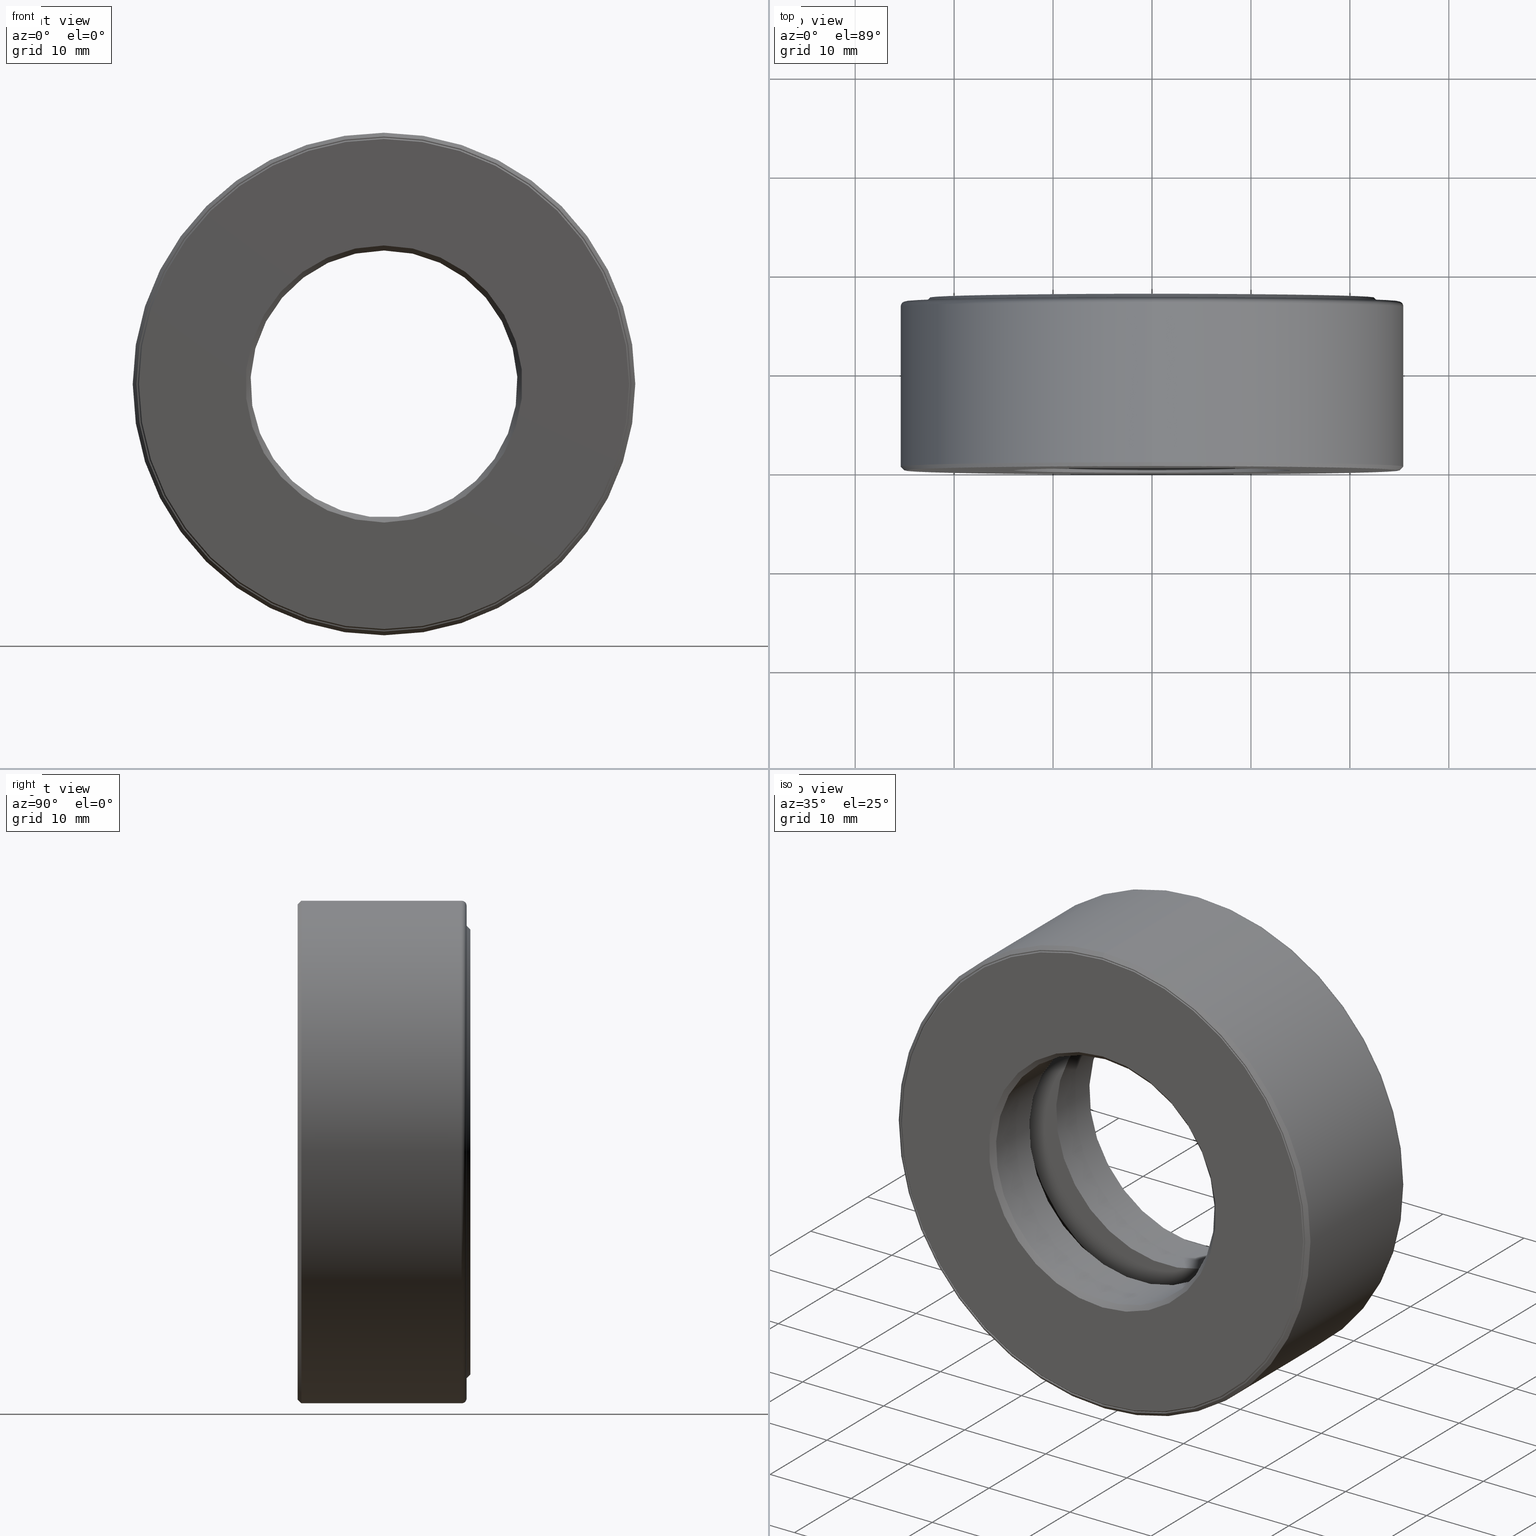
[diagram: canonical four-view strip — front | top / right | iso, engineering-drawing reading convention]
A machine part, canonical four-view strip (front | top / right | iso — engineering-drawing reading convention). The complete STEP part file that produces these views, byte-faithful:
ISO-10303-21;
HEADER;
FILE_DESCRIPTION (( 'STEP AP203' ),
    '1' );
FILE_NAME ('T-100-9.step',
    '2016-06-29T18:27:15',
    ( '' ),
    ( '' ),
    'SwSTEP 2.0',
    'SolidWorks 2016',
    '' );
FILE_SCHEMA (( 'CONFIG_CONTROL_DESIGN' ));
ENDSEC;

DATA;
#1 = DIRECTION ( 'NONE',  ( -0.0000000000000000000, 1.000000000000000000, 0.0000000000000000000 ) ) ;
#2 = DIRECTION ( 'NONE',  ( 0.0000000000000000000, 0.0000000000000000000, 1.000000000000000000 ) ) ;
#3 = DIRECTION ( 'NONE',  ( 0.0000000000000000000, 0.0000000000000000000, 1.000000000000000000 ) ) ;
#4 = VERTEX_POINT ( 'NONE', #115 ) ;
#5 = ADVANCED_FACE ( 'NONE', ( ), #351, .T. ) ;
#6 = ADVANCED_FACE ( 'NONE', ( #377, #548 ), #121, .T. ) ;
#7 = ORIENTED_EDGE ( 'NONE', *, *, #434, .F. ) ;
#8 = EDGE_LOOP ( 'NONE', ( #350 ) ) ;
#9 = AXIS2_PLACEMENT_3D ( 'NONE', #144, #508, #2 ) ;
#10 = CARTESIAN_POINT ( 'NONE',  ( 2.120999995080945500E-016, 0.2499999999999999200, 0.0000000000000000000 ) ) ;
#11 = ADVANCED_FACE ( 'NONE', ( #205, #400 ), #259, .F. ) ;
#12 = APPROVAL_DATE_TIME ( #135, #199 ) ;
#13 = VERTEX_POINT ( 'NONE', #533 ) ;
#14 = FACE_OUTER_BOUND ( 'NONE', #578, .T. ) ;
#15 = ORIENTED_EDGE ( 'NONE', *, *, #577, .F. ) ;
#16 = EDGE_LOOP ( 'NONE', ( #399 ) ) ;
#17 = DIRECTION ( 'NONE',  ( 0.0000000000000000000, -1.000000000000000000, 0.0000000000000000000 ) ) ;
#18 = PERSON_AND_ORGANIZATION ( #168, #388 ) ;
#19 = AXIS2_PLACEMENT_3D ( 'NONE', #266, #307, #397 ) ;
#20 = VERTEX_POINT ( 'NONE', #313 ) ;
#21 = CONICAL_SURFACE ( 'NONE', #165, 0.5312500000000000000, 0.7853981633974526100 ) ;
#22 = ORIENTED_EDGE ( 'NONE', *, *, #559, .F. ) ;
#23 = ORIENTED_EDGE ( 'NONE', *, *, #265, .T. ) ;
#24 = AXIS2_PLACEMENT_3D ( 'NONE', #605, #420, #417 ) ;
#25 = CC_DESIGN_APPROVAL ( #116, ( #63 ) ) ;
#26 = CLOSED_SHELL ( 'NONE', ( #5 ) ) ;
#27 = TOROIDAL_SURFACE ( 'NONE', #192, 0.8147499999999998600, 0.1562500000000000000 ) ;
#28 =( NAMED_UNIT ( * ) PLANE_ANGLE_UNIT ( ) SI_UNIT ( $, .RADIAN. ) );
#29 = EDGE_CURVE ( 'NONE', #127, #127, #250, .T. ) ;
#30 = ADVANCED_FACE ( 'NONE', ( ), #463, .T. ) ;
#31 = VERTEX_POINT ( 'NONE', #527 ) ;
#32 = CC_DESIGN_APPROVAL ( #199, ( #492 ) ) ;
#33 = EDGE_LOOP ( 'NONE', ( #211 ) ) ;
#34 = DIRECTION ( 'NONE',  ( 0.0000000000000000000, -1.000000000000000000, 0.0000000000000000000 ) ) ;
#35 = EDGE_LOOP ( 'NONE', ( #518 ) ) ;
#36 = DIRECTION ( 'NONE',  ( -0.0000000000000000000, 1.000000000000000000, -0.0000000000000000000 ) ) ;
#37 = DIRECTION ( 'NONE',  ( 0.0000000000000000000, 0.0000000000000000000, 1.000000000000000000 ) ) ;
#38 = DATE_TIME_ROLE ( 'creation_date' ) ;
#39 = VERTEX_POINT ( 'NONE', #271 ) ;
#40 = DIRECTION ( 'NONE',  ( 0.0000000000000000000, 0.0000000000000000000, 1.000000000000000000 ) ) ;
#41 = ORIENTED_EDGE ( 'NONE', *, *, #442, .F. ) ;
#42 = CARTESIAN_POINT ( 'NONE',  ( 0.0000000000000000000, 0.5995000000000001400, 0.0000000000000000000 ) ) ;
#43 = ORIENTED_EDGE ( 'NONE', *, *, #348, .F. ) ;
#44 = DIRECTION ( 'NONE',  ( -0.0000000000000000000, 1.000000000000000000, -0.0000000000000000000 ) ) ;
#45 = ADVANCED_FACE ( 'NONE', ( #472, #385 ), #370, .F. ) ;
#46 = CARTESIAN_POINT ( 'NONE',  ( 0.0000000000000000000, 0.01499999999999997700, 0.0000000000000000000 ) ) ;
#47 = DIRECTION ( 'NONE',  ( 0.0000000000000000000, 0.0000000000000000000, 1.000000000000000000 ) ) ;
#48 = MANIFOLD_SOLID_BREP ( 'Revolve3', #26 ) ;
#49 = AXIS2_PLACEMENT_3D ( 'NONE', #151, #251, #64 ) ;
#50 = DIRECTION ( 'NONE',  ( 0.0000000000000000000, 0.0000000000000000000, 1.000000000000000000 ) ) ;
#51 = LOCAL_TIME ( 14, 27, 15.00000000000000000, #162 ) ;
#52 = ADVANCED_FACE ( 'NONE', ( #427, #532 ), #27, .F. ) ;
#53 = DIRECTION ( 'NONE',  ( -0.0000000000000000000, 1.000000000000000000, -0.0000000000000000000 ) ) ;
#54 = DIRECTION ( 'NONE',  ( 0.0000000000000000000, 0.0000000000000000000, 1.000000000000000000 ) ) ;
#55 = FACE_OUTER_BOUND ( 'NONE', #422, .T. ) ;
#56 = CARTESIAN_POINT ( 'NONE',  ( 0.0000000000000000000, 0.4375000000000000000, 0.0000000000000000000 ) ) ;
#57 = ORIENTED_EDGE ( 'NONE', *, *, #29, .T. ) ;
#58 = EDGE_CURVE ( 'NONE', #496, #496, #281, .T. ) ;
#59 = CARTESIAN_POINT ( 'NONE',  ( 0.0000000000000000000, 0.4375000000000000000, 0.0000000000000000000 ) ) ;
#60 = EDGE_LOOP ( 'NONE', ( #540 ) ) ;
#61 = ADVANCED_FACE ( 'NONE', ( #232, #103 ), #159, .T. ) ;
#62 = ORIENTED_EDGE ( 'NONE', *, *, #58, .F. ) ;
#63 = SECURITY_CLASSIFICATION ( '', '', #283 ) ;
#64 = DIRECTION ( 'NONE',  ( 0.0000000000000000000, 0.0000000000000000000, 1.000000000000000000 ) ) ;
#65 = EDGE_CURVE ( 'NONE', #512, #512, #264, .T. ) ;
#66 = COORDINATED_UNIVERSAL_TIME_OFFSET ( 5, 0, .BEHIND. ) ;
#67 = CIRCLE ( 'NONE', #480, 0.6897499999999997500 ) ;
#68 = CLOSED_SHELL ( 'NONE', ( #378 ) ) ;
#69 = CC_DESIGN_APPROVAL ( #402, ( #126 ) ) ;
#70 = CIRCLE ( 'NONE', #109, 0.9799999999999997600 ) ;
#71 = ORIENTED_EDGE ( 'NONE', *, *, #146, .F. ) ;
#72 = CYLINDRICAL_SURFACE ( 'NONE', #589, 0.9200000000000000400 ) ;
#73 = DIRECTION ( 'NONE',  ( 0.0000000000000000000, 0.0000000000000000000, -1.000000000000000000 ) ) ;
#74 = COORDINATED_UNIVERSAL_TIME_OFFSET ( 5, 0, .BEHIND. ) ;
#75 = CARTESIAN_POINT ( 'NONE',  ( 0.0000000000000000000, 0.6724999999999998800, 0.9200000000000000400 ) ) ;
#76 = FACE_OUTER_BOUND ( 'NONE', #249, .T. ) ;
#77 = CARTESIAN_POINT ( 'NONE',  ( 0.0000000000000000000, 0.6524999999999997500, 0.9799999999999999800 ) ) ;
#78 = ORIENTED_EDGE ( 'NONE', *, *, #348, .T. ) ;
#79 = DIRECTION ( 'NONE',  ( 0.0000000000000000000, -1.000000000000000000, 0.0000000000000000000 ) ) ;
#80 = AXIS2_PLACEMENT_3D ( 'NONE', #321, #499, #360 ) ;
#81 = DIRECTION ( 'NONE',  ( -0.0000000000000000000, 1.000000000000000000, -0.0000000000000000000 ) ) ;
#82 = ADVANCED_FACE ( 'NONE', ( #368, #479 ), #539, .F. ) ;
#83 = DIRECTION ( 'NONE',  ( 0.0000000000000000000, 0.0000000000000000000, -1.000000000000000000 ) ) ;
#84 = CIRCLE ( 'NONE', #295, 0.9849999999999999900 ) ;
#85 = ORIENTED_EDGE ( 'NONE', *, *, #324, .F. ) ;
#86 = FACE_BOUND ( 'NONE', #305, .T. ) ;
#87 = DIRECTION ( 'NONE',  ( 0.0000000000000000000, -0.0000000000000000000, -1.000000000000000000 ) ) ;
#88 = AXIS2_PLACEMENT_3D ( 'NONE', #246, #553, #50 ) ;
#89 = DIRECTION ( 'NONE',  ( 0.0000000000000000000, 0.0000000000000000000, 1.000000000000000000 ) ) ;
#90 = DIRECTION ( 'NONE',  ( 0.0000000000000000000, 0.0000000000000000000, 1.000000000000000000 ) ) ;
#91 = APPROVAL_PERSON_ORGANIZATION ( #208, #116, #177 ) ;
#92 = CARTESIAN_POINT ( 'NONE',  ( 0.0000000000000000000, 0.2499999999999999200, 0.0000000000000000000 ) ) ;
#93 = FACE_BOUND ( 'NONE', #216, .T. ) ;
#94 = CLOSED_SHELL ( 'NONE', ( #52, #593, #332, #252, #124, #82, #134, #236, #61, #244, #196, #213, #185, #513, #11, #45 ) ) ;
#95 = DIRECTION ( 'NONE',  ( -0.0000000000000000000, 1.000000000000000000, -0.0000000000000000000 ) ) ;
#96 = DIRECTION ( 'NONE',  ( 0.0000000000000000000, 0.0000000000000000000, 1.000000000000000000 ) ) ;
#97 = DIRECTION ( 'NONE',  ( -0.0000000000000000000, 1.000000000000000000, -0.0000000000000000000 ) ) ;
#98 = PLANE ( 'NONE',  #157 ) ;
#99 = CYLINDRICAL_SURFACE ( 'NONE', #303, 0.9799999999999999800 ) ;
#100 = DIRECTION ( 'NONE',  ( -0.0000000000000000000, 1.000000000000000000, -0.0000000000000000000 ) ) ;
#101 = CLOSED_SHELL ( 'NONE', ( #30 ) ) ;
#102 = EDGE_CURVE ( 'NONE', #31, #31, #120, .T. ) ;
#103 = FACE_BOUND ( 'NONE', #471, .T. ) ;
#104 = CARTESIAN_POINT ( 'NONE',  ( 0.0000000000000000000, 0.4375000000000000000, 0.0000000000000000000 ) ) ;
#105 = DIRECTION ( 'NONE',  ( 0.0000000000000000000, 0.0000000000000000000, 1.000000000000000000 ) ) ;
#106 = APPROVAL_DATE_TIME ( #522, #402 ) ;
#107 = FACE_OUTER_BOUND ( 'NONE', #170, .T. ) ;
#108 = EDGE_LOOP ( 'NONE', ( #323 ) ) ;
#109 = AXIS2_PLACEMENT_3D ( 'NONE', #92, #53, #514 ) ;
#110 = AXIS2_PLACEMENT_3D ( 'NONE', #506, #465, #245 ) ;
#111 = TOROIDAL_SURFACE ( 'NONE', #429, 0.8147499999999998600, 0.1562500000000001100 ) ;
#112 = ORIENTED_EDGE ( 'NONE', *, *, #161, .T. ) ;
#113 = EDGE_LOOP ( 'NONE', ( #112 ) ) ;
#114 = CARTESIAN_POINT ( 'NONE',  ( 2.844684420822442200E-015, 0.3437499999999998300, 0.8147499999999998600 ) ) ;
#115 = CARTESIAN_POINT ( 'NONE',  ( 0.0000000000000000000, 0.01499999999999997700, 0.9999999999999998900 ) ) ;
#116 = APPROVAL ( #592, 'UNSPECIFIED' ) ;
#117 =( LENGTH_UNIT ( ) NAMED_UNIT ( * ) SI_UNIT ( $, .METRE. ) );
#118 = FACE_OUTER_BOUND ( 'NONE', #60, .T. ) ;
#119 = EDGE_LOOP ( 'NONE', ( #71 ) ) ;
#120 = CIRCLE ( 'NONE', #392, 0.9799999999999999800 ) ;
#121 = PLANE ( 'NONE',  #524 ) ;
#122 = CARTESIAN_POINT ( 'NONE',  ( 0.0000000000000000000, 0.005000000000000000100, 0.9799999999999999800 ) ) ;
#123 = ADVANCED_FACE ( 'NONE', ( ), #287, .T. ) ;
#124 = ADVANCED_FACE ( 'NONE', ( #579, #343 ), #72, .F. ) ;
#125 = CARTESIAN_POINT ( 'NONE',  ( 0.0000000000000000000, 0.3437499999999998300, 0.0000000000000000000 ) ) ;
#126 = PRODUCT_DEFINITION_FORMATION_WITH_SPECIFIED_SOURCE ( 'ANY', '', #404, .NOT_KNOWN. ) ;
#127 = VERTEX_POINT ( 'NONE', #438 ) ;
#128 = DIRECTION ( 'NONE',  ( -0.0000000000000000000, 1.000000000000000000, -0.0000000000000000000 ) ) ;
#129 = ORIENTED_EDGE ( 'NONE', *, *, #29, .F. ) ;
#130 = EDGE_LOOP ( 'NONE', ( #478 ) ) ;
#131 = CARTESIAN_POINT ( 'NONE',  ( 0.0000000000000000000, 0.01999999999999992400, 0.0000000000000000000 ) ) ;
#132 = AXIS2_PLACEMENT_3D ( 'NONE', #221, #73, #446 ) ;
#133 = DIRECTION ( 'NONE',  ( 0.0000000000000000000, -0.0000000000000000000, -1.000000000000000000 ) ) ;
#134 = ADVANCED_FACE ( 'NONE', ( #309, #325 ), #270, .T. ) ;
#135 = DATE_AND_TIME ( #543, #267 ) ;
#136 = DIRECTION ( 'NONE',  ( -0.0000000000000000000, 1.000000000000000000, -0.0000000000000000000 ) ) ;
#137 = VERTEX_POINT ( 'NONE', #487 ) ;
#138 = EDGE_LOOP ( 'NONE', ( #308 ) ) ;
#139 = EDGE_LOOP ( 'NONE', ( #41 ) ) ;
#140 = DIRECTION ( 'NONE',  ( 0.0000000000000000000, 0.0000000000000000000, 1.000000000000000000 ) ) ;
#141 = DIRECTION ( 'NONE',  ( -0.0000000000000000000, 1.000000000000000000, -0.0000000000000000000 ) ) ;
#142 = DIRECTION ( 'NONE',  ( -0.0000000000000000000, 1.000000000000000000, -0.0000000000000000000 ) ) ;
#143 = DIRECTION ( 'NONE',  ( 0.0000000000000000000, 0.0000000000000000000, 1.000000000000000000 ) ) ;
#144 = CARTESIAN_POINT ( 'NONE',  ( 0.0000000000000000000, 0.0000000000000000000, 0.0000000000000000000 ) ) ;
#145 = CIRCLE ( 'NONE', #49, 0.6897499999999997500 ) ;
#146 = EDGE_CURVE ( 'NONE', #382, #382, #505, .T. ) ;
#147 = CARTESIAN_POINT ( 'NONE',  ( 0.0000000000000000000, 0.3437499999999998300, 0.0000000000000000000 ) ) ;
#148 = ORIENTED_EDGE ( 'NONE', *, *, #260, .F. ) ;
#149 = FACE_OUTER_BOUND ( 'NONE', #139, .T. ) ;
#150 = CARTESIAN_POINT ( 'NONE',  ( 0.0000000000000000000, 0.0000000000000000000, 0.0000000000000000000 ) ) ;
#151 = CARTESIAN_POINT ( 'NONE',  ( 0.0000000000000000000, 0.2499999999999999700, 0.0000000000000000000 ) ) ;
#152 = DIRECTION ( 'NONE',  ( 0.0000000000000000000, 0.0000000000000000000, 1.000000000000000000 ) ) ;
#153 = LENGTH_MEASURE_WITH_UNIT ( LENGTH_MEASURE( 0.02539999999999999900 ), #117 );
#154 = VERTEX_POINT ( 'NONE', #122 ) ;
#155 = CARTESIAN_POINT ( 'NONE',  ( 0.0000000000000000000, 0.4374999999999998900, 0.0000000000000000000 ) ) ;
#156 = EDGE_LOOP ( 'NONE', ( #240 ) ) ;
#157 = AXIS2_PLACEMENT_3D ( 'NONE', #104, #17, #200 ) ;
#158 = ADVANCED_FACE ( 'NONE', ( #587, #86 ), #166, .T. ) ;
#159 = CONICAL_SURFACE ( 'NONE', #212, 0.9849999999999999900, 0.7853981633974415100 ) ;
#160 = CARTESIAN_POINT ( 'NONE',  ( 0.0000000000000000000, 0.01999999999999992400, 0.0000000000000000000 ) ) ;
#161 = EDGE_CURVE ( 'NONE', #194, #194, #184, .T. ) ;
#162 = COORDINATED_UNIVERSAL_TIME_OFFSET ( 5, 0, .BEHIND. ) ;
#163 = FACE_OUTER_BOUND ( 'NONE', #16, .T. ) ;
#164 = EDGE_LOOP ( 'NONE', ( #171 ) ) ;
#165 = AXIS2_PLACEMENT_3D ( 'NONE', #160, #474, #207 ) ;
#166 = CONICAL_SURFACE ( 'NONE', #298, 0.8849999999999996800, 0.7853981633974482800 ) ;
#167 = CARTESIAN_POINT ( 'NONE',  ( 0.0000000000000000000, 0.01999999999999992400, 0.5312500000000000000 ) ) ;
#168 = PERSON ( 'UNSPECIFIED', 'UNSPECIFIED', 'UNSPECIFIED', ('UNSPECIFIED'), ('UNSPECIFIED'), ('UNSPECIFIED') ) ;
#169 = AXIS2_PLACEMENT_3D ( 'NONE', #114, #319, #233 ) ;
#170 = EDGE_LOOP ( 'NONE', ( #183 ) ) ;
#171 = ORIENTED_EDGE ( 'NONE', *, *, #414, .F. ) ;
#172 = DIRECTION ( 'NONE',  ( 0.0000000000000000000, 0.0000000000000000000, 1.000000000000000000 ) ) ;
#173 = DATE_AND_TIME ( #570, #220 ) ;
#174 = CIRCLE ( 'NONE', #345, 0.9200000000000000400 ) ;
#175 = EDGE_LOOP ( 'NONE', ( #15 ) ) ;
#176 = CARTESIAN_POINT ( 'NONE',  ( 0.8147499999999998600, 0.3437499999999998300, -5.689368841644884400E-015 ) ) ;
#177 = APPROVAL_ROLE ( '' ) ;
#178 = EDGE_CURVE ( 'NONE', #572, #572, #606, .T. ) ;
#179 = CARTESIAN_POINT ( 'NONE',  ( 0.0000000000000000000, 0.2500000000000000000, 0.0000000000000000000 ) ) ;
#180 = DIRECTION ( 'NONE',  ( 0.0000000000000000000, 0.0000000000000000000, 1.000000000000000000 ) ) ;
#181 = PERSON_AND_ORGANIZATION_ROLE ( 'creator' ) ;
#182 = CARTESIAN_POINT ( 'NONE',  ( 0.0000000000000000000, 0.6875000000000000000, 0.0000000000000000000 ) ) ;
#183 = ORIENTED_EDGE ( 'NONE', *, *, #354, .F. ) ;
#184 = CIRCLE ( 'NONE', #202, 0.9799999999999997600 ) ;
#185 = ADVANCED_FACE ( 'NONE', ( #149, #347 ), #379, .F. ) ;
#186 = CARTESIAN_POINT ( 'NONE',  ( -5.386135634196113100E-017, 0.2500000000000000000, 0.0000000000000000000 ) ) ;
#187 = CC_DESIGN_PERSON_AND_ORGANIZATION_ASSIGNMENT ( #380, #181, ( #126 ) ) ;
#188 = DIRECTION ( 'NONE',  ( -0.0000000000000000000, 1.000000000000000000, -0.0000000000000000000 ) ) ;
#189 = DIRECTION ( 'NONE',  ( -0.0000000000000000000, 1.000000000000000000, -0.0000000000000000000 ) ) ;
#190 = DESIGN_CONTEXT ( 'detailed design', #529, 'design' ) ;
#191 = CARTESIAN_POINT ( 'NONE',  ( 0.0000000000000000000, 0.0000000000000000000, 0.0000000000000000000 ) ) ;
#192 = AXIS2_PLACEMENT_3D ( 'NONE', #125, #136, #229 ) ;
#193 = DIRECTION ( 'NONE',  ( -0.0000000000000000000, 1.000000000000000000, -0.0000000000000000000 ) ) ;
#194 = VERTEX_POINT ( 'NONE', #401 ) ;
#195 = DIRECTION ( 'NONE',  ( -0.0000000000000000000, 1.000000000000000000, -0.0000000000000000000 ) ) ;
#196 = ADVANCED_FACE ( 'NONE', ( #391, #293 ), #349, .F. ) ;
#197 = ORIENTED_EDGE ( 'NONE', *, *, #290, .F. ) ;
#198 = PLANE ( 'NONE',  #274 ) ;
#199 = APPROVAL ( #372, 'UNSPECIFIED' ) ;
#200 = DIRECTION ( 'NONE',  ( 0.0000000000000000000, -0.0000000000000000000, -1.000000000000000000 ) ) ;
#201 = FACE_OUTER_BOUND ( 'NONE', #175, .T. ) ;
#202 = AXIS2_PLACEMENT_3D ( 'NONE', #286, #189, #47 ) ;
#203 = DIRECTION ( 'NONE',  ( 0.0000000000000000000, -0.0000000000000000000, -1.000000000000000000 ) ) ;
#204 = EDGE_LOOP ( 'NONE', ( #302 ) ) ;
#205 = FACE_OUTER_BOUND ( 'NONE', #342, .T. ) ;
#206 = DIRECTION ( 'NONE',  ( 0.0000000000000000000, 0.0000000000000000000, 1.000000000000000000 ) ) ;
#207 = DIRECTION ( 'NONE',  ( 0.0000000000000000000, 0.0000000000000000000, -1.000000000000000000 ) ) ;
#208 = PERSON_AND_ORGANIZATION ( #168, #388 ) ;
#209 = CIRCLE ( 'NONE', #502, 0.9729999999999998600 ) ;
#210 = AXIS2_PLACEMENT_3D ( 'NONE', #243, #556, #54 ) ;
#211 = ORIENTED_EDGE ( 'NONE', *, *, #559, .T. ) ;
#212 = AXIS2_PLACEMENT_3D ( 'NONE', #598, #501, #40 ) ;
#213 = ADVANCED_FACE ( 'NONE', ( #222, #230 ), #322, .T. ) ;
#214 = CIRCLE ( 'NONE', #334, 0.5312500000000000000 ) ;
#215 = ORIENTED_EDGE ( 'NONE', *, *, #354, .T. ) ;
#216 = EDGE_LOOP ( 'NONE', ( #566 ) ) ;
#217 = CARTESIAN_POINT ( 'NONE',  ( 0.0000000000000000000, 0.4375000000000000000, 0.9397499999999998600 ) ) ;
#218 = CARTESIAN_POINT ( 'NONE',  ( 0.0000000000000000000, 0.6524999999999997500, 1.000000000000000000 ) ) ;
#219 = AXIS2_PLACEMENT_3D ( 'NONE', #423, #195, #560 ) ;
#220 = LOCAL_TIME ( 14, 27, 15.00000000000000000, #405 ) ;
#221 = CARTESIAN_POINT ( 'NONE',  ( -0.8147499999999998600, 0.3437499999999998300, 0.0000000000000000000 ) ) ;
#222 = FACE_OUTER_BOUND ( 'NONE', #164, .T. ) ;
#223 = ADVANCED_BREP_SHAPE_REPRESENTATION ( 'T-100-9', ( #376, #272, #48, #535, #483, #582, #520 ), #384 ) ;
#224 = ORIENTED_EDGE ( 'NONE', *, *, #338, .T. ) ;
#225 = CARTESIAN_POINT ( 'NONE',  ( 0.0000000000000000000, 0.4374999999999998900, 0.9729999999999998600 ) ) ;
#226 = DIRECTION ( 'NONE',  ( -0.0000000000000000000, 1.000000000000000000, -0.0000000000000000000 ) ) ;
#227 = PERSON_AND_ORGANIZATION_ROLE ( 'classification_officer' ) ;
#228 = ADVANCED_FACE ( 'NONE', ( #584, #304 ), #248, .F. ) ;
#229 = DIRECTION ( 'NONE',  ( 0.0000000000000000000, 0.0000000000000000000, 1.000000000000000000 ) ) ;
#230 = FACE_BOUND ( 'NONE', #263, .T. ) ;
#231 = ORIENTED_EDGE ( 'NONE', *, *, #338, .F. ) ;
#232 = FACE_OUTER_BOUND ( 'NONE', #130, .T. ) ;
#233 = DIRECTION ( 'NONE',  ( -3.491481338843134500E-015, 0.0000000000000000000, -1.000000000000000000 ) ) ;
#234 = CARTESIAN_POINT ( 'NONE',  ( 0.0000000000000000000, 0.6524999999999997500, 0.0000000000000000000 ) ) ;
#235 = CALENDAR_DATE ( 2016, 29, 6 ) ;
#236 = ADVANCED_FACE ( 'NONE', ( #14, #489 ), #346, .T. ) ;
#237 = DIRECTION ( 'NONE',  ( -0.0000000000000000000, 1.000000000000000000, -0.0000000000000000000 ) ) ;
#238 = CIRCLE ( 'NONE', #531, 0.9200000000000000400 ) ;
#239 = DIRECTION ( 'NONE',  ( 0.0000000000000000000, 0.0000000000000000000, 1.000000000000000000 ) ) ;
#240 = ORIENTED_EDGE ( 'NONE', *, *, #315, .F. ) ;
#241 = DIRECTION ( 'NONE',  ( 0.0000000000000000000, 0.0000000000000000000, 1.000000000000000000 ) ) ;
#242 = CC_DESIGN_DATE_AND_TIME_ASSIGNMENT ( #445, #601, ( #63 ) ) ;
#243 = CARTESIAN_POINT ( 'NONE',  ( 0.0000000000000000000, 0.6675000000000000900, 0.0000000000000000000 ) ) ;
#244 = ADVANCED_FACE ( 'NONE', ( #576, #523 ), #329, .F. ) ;
#245 = DIRECTION ( 'NONE',  ( 0.0000000000000000000, 0.0000000000000000000, 1.000000000000000000 ) ) ;
#246 = CARTESIAN_POINT ( 'NONE',  ( 0.0000000000000000000, 0.005000000000000000100, 0.0000000000000000000 ) ) ;
#247 = PERSON_AND_ORGANIZATION ( #168, #388 ) ;
#248 = CYLINDRICAL_SURFACE ( 'NONE', #393, 0.5312500000000000000 ) ;
#249 = EDGE_LOOP ( 'NONE', ( #390 ) ) ;
#250 = CIRCLE ( 'NONE', #365, 0.8849999999999996800 ) ;
#251 = DIRECTION ( 'NONE',  ( -0.0000000000000000000, 1.000000000000000000, -0.0000000000000000000 ) ) ;
#252 = ADVANCED_FACE ( 'NONE', ( #573, #93 ), #198, .F. ) ;
#253 = DIRECTION ( 'NONE',  ( 0.0000000000000000000, -0.0000000000000000000, -1.000000000000000000 ) ) ;
#254 = PERSON_AND_ORGANIZATION ( #168, #388 ) ;
#255 = VERTEX_POINT ( 'NONE', #443 ) ;
#256 = AXIS2_PLACEMENT_3D ( 'NONE', #277, #362, #410 ) ;
#257 = SPHERICAL_SURFACE ( 'NONE', #320, 0.1562500000000000000 ) ;
#258 = EDGE_LOOP ( 'NONE', ( #333 ) ) ;
#259 = CYLINDRICAL_SURFACE ( 'NONE', #19, 0.5312500000000000000 ) ;
#260 = EDGE_CURVE ( 'NONE', #255, #255, #70, .T. ) ;
#261 = FACE_OUTER_BOUND ( 'NONE', #415, .T. ) ;
#262 = AXIS2_PLACEMENT_3D ( 'NONE', #150, #44, #241 ) ;
#263 = EDGE_LOOP ( 'NONE', ( #530 ) ) ;
#264 = CIRCLE ( 'NONE', #571, 0.5312500000000000000 ) ;
#265 = EDGE_CURVE ( 'NONE', #20, #20, #469, .T. ) ;
#266 = CARTESIAN_POINT ( 'NONE',  ( 0.0000000000000000000, 0.0000000000000000000, 0.0000000000000000000 ) ) ;
#267 = LOCAL_TIME ( 14, 27, 15.00000000000000000, #437 ) ;
#268 = VERTEX_POINT ( 'NONE', #75 ) ;
#269 = ORIENTED_EDGE ( 'NONE', *, *, #178, .T. ) ;
#270 = TOROIDAL_SURFACE ( 'NONE', #80, 0.9799999999999999800, 0.02000000000000005900 ) ;
#271 = CARTESIAN_POINT ( 'NONE',  ( 0.0000000000000000000, 0.6675000000000000900, 0.5312500000000000000 ) ) ;
#272 = MANIFOLD_SOLID_BREP ( 'Revolve2[2]', #594 ) ;
#273 = DIRECTION ( 'NONE',  ( -0.0000000000000000000, 1.000000000000000000, 0.0000000000000000000 ) ) ;
#274 = AXIS2_PLACEMENT_3D ( 'NONE', #510, #335, #551 ) ;
#275 = CARTESIAN_POINT ( 'NONE',  ( 0.0000000000000000000, 0.6724999999999998800, 0.0000000000000000000 ) ) ;
#276 =( NAMED_UNIT ( * ) SI_UNIT ( $, .STERADIAN. ) SOLID_ANGLE_UNIT ( ) );
#277 = CARTESIAN_POINT ( 'NONE',  ( 0.0000000000000000000, 0.2499999999999998900, 0.0000000000000000000 ) ) ;
#278 = FACE_BOUND ( 'NONE', #519, .T. ) ;
#279 = EDGE_LOOP ( 'NONE', ( #231 ) ) ;
#280 = AXIS2_PLACEMENT_3D ( 'NONE', #544, #128, #547 ) ;
#281 = CIRCLE ( 'NONE', #280, 0.5512500000000001300 ) ;
#282 = CARTESIAN_POINT ( 'NONE',  ( 0.0000000000000000000, 0.6724999999999998800, 0.0000000000000000000 ) ) ;
#283 = SECURITY_CLASSIFICATION_LEVEL ( 'unclassified' ) ;
#284 = DIRECTION ( 'NONE',  ( 0.0000000000000000000, 0.0000000000000000000, 1.000000000000000000 ) ) ;
#285 = ORIENTED_EDGE ( 'NONE', *, *, #494, .T. ) ;
#286 = CARTESIAN_POINT ( 'NONE',  ( 0.0000000000000000000, -6.398792618417301800E-017, 0.0000000000000000000 ) ) ;
#287 = SPHERICAL_SURFACE ( 'NONE', #306, 0.1562500000000000000 ) ;
#288 = CC_DESIGN_PERSON_AND_ORGANIZATION_ASSIGNMENT ( #363, #361, ( #404 ) ) ;
#289 = DIRECTION ( 'NONE',  ( -0.0000000000000000000, 1.000000000000000000, -0.0000000000000000000 ) ) ;
#290 = EDGE_CURVE ( 'NONE', #554, #554, #447, .T. ) ;
#291 = PERSON_AND_ORGANIZATION ( #168, #388 ) ;
#292 = CARTESIAN_POINT ( 'NONE',  ( 0.0000000000000000000, 0.6524999999999997500, 0.0000000000000000000 ) ) ;
#293 = FACE_OUTER_BOUND ( 'NONE', #383, .T. ) ;
#294 = EDGE_LOOP ( 'NONE', ( #78 ) ) ;
#295 = AXIS2_PLACEMENT_3D ( 'NONE', #467, #97, #561 ) ;
#296 = CARTESIAN_POINT ( 'NONE',  ( 0.0000000000000000000, -6.296055922898107200E-017, 0.0000000000000000000 ) ) ;
#297 = CARTESIAN_POINT ( 'NONE',  ( -8.986342084421963400E-016, 0.4374999999999998900, 0.0000000000000000000 ) ) ;
#298 = AXIS2_PLACEMENT_3D ( 'NONE', #182, #452, #83 ) ;
#299 = CARTESIAN_POINT ( 'NONE',  ( 0.0000000000000000000, 0.4375000000000000000, 0.0000000000000000000 ) ) ;
#300 = VERTEX_POINT ( 'NONE', #403 ) ;
#301 = ORIENTED_EDGE ( 'NONE', *, *, #178, .F. ) ;
#302 = ORIENTED_EDGE ( 'NONE', *, *, #464, .F. ) ;
#303 = AXIS2_PLACEMENT_3D ( 'NONE', #525, #358, #37 ) ;
#304 = FACE_OUTER_BOUND ( 'NONE', #8, .T. ) ;
#305 = EDGE_LOOP ( 'NONE', ( #129 ) ) ;
#306 = AXIS2_PLACEMENT_3D ( 'NONE', #176, #597, #591 ) ;
#307 = DIRECTION ( 'NONE',  ( -0.0000000000000000000, 1.000000000000000000, -0.0000000000000000000 ) ) ;
#308 = ORIENTED_EDGE ( 'NONE', *, *, #161, .F. ) ;
#309 = FACE_OUTER_BOUND ( 'NONE', #604, .T. ) ;
#310 = CARTESIAN_POINT ( 'NONE',  ( 0.0000000000000000000, 0.2499999999999998900, 0.9397499999999998600 ) ) ;
#311 = PRODUCT_RELATED_PRODUCT_CATEGORY ( 'detail', '', ( #404 ) ) ;
#312 = DIRECTION ( 'NONE',  ( 1.000000000000000000, 0.0000000000000000000, 0.0000000000000000000 ) ) ;
#313 = CARTESIAN_POINT ( 'NONE',  ( 0.0000000000000000000, 0.4375000000000000000, 0.5312500000000000000 ) ) ;
#314 = CIRCLE ( 'NONE', #375, 0.9397499999999998600 ) ;
#315 = EDGE_CURVE ( 'NONE', #381, #381, #174, .T. ) ;
#316 = EDGE_LOOP ( 'NONE', ( #197 ) ) ;
#317 = CARTESIAN_POINT ( 'NONE',  ( 0.0000000000000000000, 0.0000000000000000000, 0.0000000000000000000 ) ) ;
#318 = MECHANICAL_CONTEXT ( 'NONE', #588, 'mechanical' ) ;
#319 = DIRECTION ( 'NONE',  ( -1.000000000000000000, 0.0000000000000000000, 3.491481338843134500E-015 ) ) ;
#320 = AXIS2_PLACEMENT_3D ( 'NONE', #537, #550, #602 ) ;
#321 = CARTESIAN_POINT ( 'NONE',  ( 0.0000000000000000000, 0.6524999999999997500, 0.0000000000000000000 ) ) ;
#322 = CONICAL_SURFACE ( 'NONE', #110, 0.9749999999999999800, 0.7853981633974367300 ) ;
#323 = ORIENTED_EDGE ( 'NONE', *, *, #58, .T. ) ;
#324 = EDGE_CURVE ( 'NONE', #432, #432, #209, .T. ) ;
#325 = FACE_OUTER_BOUND ( 'NONE', #294, .T. ) ;
#326 = DIRECTION ( 'NONE',  ( 0.0000000000000000000, 0.0000000000000000000, 1.000000000000000000 ) ) ;
#327 = DIRECTION ( 'NONE',  ( 0.0000000000000000000, 0.0000000000000000000, 1.000000000000000000 ) ) ;
#328 = PERSON_AND_ORGANIZATION ( #168, #388 ) ;
#329 = PLANE ( 'NONE',  #595 ) ;
#330 = ADVANCED_FACE ( 'NONE', ( #118, #107 ), #355, .T. ) ;
#331 = FACE_OUTER_BOUND ( 'NONE', #456, .T. ) ;
#332 = ADVANCED_FACE ( 'NONE', ( #261, #331 ), #99, .F. ) ;
#333 = ORIENTED_EDGE ( 'NONE', *, *, #464, .T. ) ;
#334 = AXIS2_PLACEMENT_3D ( 'NONE', #416, #193, #418 ) ;
#335 = DIRECTION ( 'NONE',  ( -0.0000000000000000000, 1.000000000000000000, 0.0000000000000000000 ) ) ;
#336 = DIRECTION ( 'NONE',  ( -0.0000000000000000000, 1.000000000000000000, -0.0000000000000000000 ) ) ;
#337 = DIRECTION ( 'NONE',  ( 0.0000000000000000000, 0.0000000000000000000, 1.000000000000000000 ) ) ;
#338 = EDGE_CURVE ( 'NONE', #488, #488, #555, .T. ) ;
#339 = CARTESIAN_POINT ( 'NONE',  ( 0.0000000000000000000, 0.0000000000000000000, 0.0000000000000000000 ) ) ;
#340 = CIRCLE ( 'NONE', #511, 0.9729999999999995300 ) ;
#341 = DIRECTION ( 'NONE',  ( 0.0000000000000000000, -1.000000000000000000, 0.0000000000000000000 ) ) ;
#342 = EDGE_LOOP ( 'NONE', ( #526 ) ) ;
#343 = FACE_OUTER_BOUND ( 'NONE', #258, .T. ) ;
#344 = APPROVAL_DATE_TIME ( #460, #116 ) ;
#345 = AXIS2_PLACEMENT_3D ( 'NONE', #234, #549, #327 ) ;
#346 = CYLINDRICAL_SURFACE ( 'NONE', #24, 1.000000000000000000 ) ;
#347 = FACE_BOUND ( 'NONE', #374, .T. ) ;
#348 = EDGE_CURVE ( 'NONE', #426, #426, #454, .T. ) ;
#349 = CYLINDRICAL_SURFACE ( 'NONE', #9, 0.9799999999999999800 ) ;
#350 = ORIENTED_EDGE ( 'NONE', *, *, #265, .F. ) ;
#351 = SPHERICAL_SURFACE ( 'NONE', #132, 0.1562500000000000000 ) ;
#352 = EDGE_CURVE ( 'NONE', #4, #4, #373, .T. ) ;
#353 = APPROVAL_PERSON_ORGANIZATION ( #328, #402, #545 ) ;
#354 = EDGE_CURVE ( 'NONE', #300, #300, #340, .T. ) ;
#355 = CYLINDRICAL_SURFACE ( 'NONE', #262, 0.9729999999999997500 ) ;
#356 = EDGE_LOOP ( 'NONE', ( #62 ) ) ;
#357 = ORIENTED_EDGE ( 'NONE', *, *, #290, .T. ) ;
#358 = DIRECTION ( 'NONE',  ( -0.0000000000000000000, 1.000000000000000000, -0.0000000000000000000 ) ) ;
#359 = APPLICATION_PROTOCOL_DEFINITION ( 'international standard', 'config_control_design', 1994, #588 ) ;
#360 = DIRECTION ( 'NONE',  ( 0.0000000000000000000, 0.0000000000000000000, 1.000000000000000000 ) ) ;
#361 = PERSON_AND_ORGANIZATION_ROLE ( 'design_owner' ) ;
#362 = DIRECTION ( 'NONE',  ( -0.0000000000000000000, 1.000000000000000000, -0.0000000000000000000 ) ) ;
#363 = PERSON_AND_ORGANIZATION ( #168, #388 ) ;
#364 = FACE_BOUND ( 'NONE', #279, .T. ) ;
#365 = AXIS2_PLACEMENT_3D ( 'NONE', #412, #226, #180 ) ;
#366 = EDGE_LOOP ( 'NONE', ( #301 ) ) ;
#367 = DIRECTION ( 'NONE',  ( 0.0000000000000000000, 0.0000000000000000000, 1.000000000000000000 ) ) ;
#368 = FACE_BOUND ( 'NONE', #204, .T. ) ;
#369 = DIRECTION ( 'NONE',  ( 0.0000000000000000000, 0.0000000000000000000, 1.000000000000000000 ) ) ;
#370 = PLANE ( 'NONE',  #444 ) ;
#371 = VERTEX_POINT ( 'NONE', #217 ) ;
#372 = APPROVAL_STATUS ( 'not_yet_approved' ) ;
#373 = CIRCLE ( 'NONE', #552, 0.9999999999999998900 ) ;
#374 = EDGE_LOOP ( 'NONE', ( #269 ) ) ;
#375 = AXIS2_PLACEMENT_3D ( 'NONE', #59, #386, #152 ) ;
#376 = MANIFOLD_SOLID_BREP ( 'Revolve2[1]', #94 ) ;
#377 = FACE_OUTER_BOUND ( 'NONE', #498, .T. ) ;
#378 = ADVANCED_FACE ( 'NONE', ( ), #257, .T. ) ;
#379 = PLANE ( 'NONE',  #517 ) ;
#380 = PERSON_AND_ORGANIZATION ( #168, #388 ) ;
#381 = VERTEX_POINT ( 'NONE', #409 ) ;
#382 = VERTEX_POINT ( 'NONE', #398 ) ;
#383 = EDGE_LOOP ( 'NONE', ( #515 ) ) ;
#384 =( GEOMETRIC_REPRESENTATION_CONTEXT ( 3 ) GLOBAL_UNCERTAINTY_ASSIGNED_CONTEXT ( ( #431 ) ) GLOBAL_UNIT_ASSIGNED_CONTEXT ( ( #583, #28, #276 ) ) REPRESENTATION_CONTEXT ( 'NONE', 'WORKASPACE' ) );
#385 = FACE_OUTER_BOUND ( 'NONE', #33, .T. ) ;
#386 = DIRECTION ( 'NONE',  ( -0.0000000000000000000, 1.000000000000000000, -0.0000000000000000000 ) ) ;
#387 = CARTESIAN_POINT ( 'NONE',  ( 0.0000000000000000000, 0.6724999999999998800, 0.0000000000000000000 ) ) ;
#388 = ORGANIZATION ( 'UNSPECIFIED', 'UNSPECIFIED', '' ) ;
#389 = VERTEX_POINT ( 'NONE', #493 ) ;
#390 = ORIENTED_EDGE ( 'NONE', *, *, #260, .T. ) ;
#391 = FACE_OUTER_BOUND ( 'NONE', #138, .T. ) ;
#392 = AXIS2_PLACEMENT_3D ( 'NONE', #275, #81, #369 ) ;
#393 = AXIS2_PLACEMENT_3D ( 'NONE', #191, #237, #558 ) ;
#394 = FACE_OUTER_BOUND ( 'NONE', #366, .T. ) ;
#395 = EDGE_LOOP ( 'NONE', ( #491 ) ) ;
#396 = EDGE_LOOP ( 'NONE', ( #7 ) ) ;
#397 = DIRECTION ( 'NONE',  ( 0.0000000000000000000, 0.0000000000000000000, 1.000000000000000000 ) ) ;
#398 = CARTESIAN_POINT ( 'NONE',  ( 0.0000000000000000000, 0.2500000000000000000, 0.5312500000000000000 ) ) ;
#399 = ORIENTED_EDGE ( 'NONE', *, *, #494, .F. ) ;
#400 = FACE_OUTER_BOUND ( 'NONE', #433, .T. ) ;
#401 = CARTESIAN_POINT ( 'NONE',  ( 0.0000000000000000000, -6.398792618417301800E-017, 0.9799999999999997600 ) ) ;
#402 = APPROVAL ( #500, 'UNSPECIFIED' ) ;
#403 = CARTESIAN_POINT ( 'NONE',  ( 0.0000000000000000000, 0.5995000000000001400, 0.9729999999999995300 ) ) ;
#404 = PRODUCT ( 'T-100-9', 'T-100-9', '', ( #318 ) ) ;
#405 = COORDINATED_UNIVERSAL_TIME_OFFSET ( 5, 0, .BEHIND. ) ;
#406 = AXIS2_PLACEMENT_3D ( 'NONE', #282, #34, #87 ) ;
#407 = FACE_OUTER_BOUND ( 'NONE', #440, .T. ) ;
#408 = DIRECTION ( 'NONE',  ( -0.0000000000000000000, 1.000000000000000000, -0.0000000000000000000 ) ) ;
#409 = CARTESIAN_POINT ( 'NONE',  ( 0.0000000000000000000, 0.6524999999999997500, 0.9200000000000000400 ) ) ;
#410 = DIRECTION ( 'NONE',  ( 0.0000000000000000000, 0.0000000000000000000, 1.000000000000000000 ) ) ;
#411 = CC_DESIGN_DATE_AND_TIME_ASSIGNMENT ( #173, #38, ( #492 ) ) ;
#412 = CARTESIAN_POINT ( 'NONE',  ( 0.0000000000000000000, 0.6875000000000000000, 0.0000000000000000000 ) ) ;
#413 = ADVANCED_FACE ( 'NONE', ( #55, #201 ), #111, .F. ) ;
#414 = EDGE_CURVE ( 'NONE', #154, #154, #603, .T. ) ;
#415 = EDGE_LOOP ( 'NONE', ( #148 ) ) ;
#416 = CARTESIAN_POINT ( 'NONE',  ( 0.0000000000000000000, 0.6675000000000000900, 0.0000000000000000000 ) ) ;
#417 = DIRECTION ( 'NONE',  ( 0.0000000000000000000, 0.0000000000000000000, 1.000000000000000000 ) ) ;
#418 = DIRECTION ( 'NONE',  ( 0.0000000000000000000, 0.0000000000000000000, 1.000000000000000000 ) ) ;
#419 = DIRECTION ( 'NONE',  ( -0.0000000000000000000, 1.000000000000000000, 0.0000000000000000000 ) ) ;
#420 = DIRECTION ( 'NONE',  ( -0.0000000000000000000, 1.000000000000000000, -0.0000000000000000000 ) ) ;
#421 = AXIS2_PLACEMENT_3D ( 'NONE', #56, #95, #337 ) ;
#422 = EDGE_LOOP ( 'NONE', ( #285 ) ) ;
#423 = CARTESIAN_POINT ( 'NONE',  ( 0.0000000000000000000, 0.6524999999999997500, 0.0000000000000000000 ) ) ;
#424 = EDGE_CURVE ( 'NONE', #39, #39, #214, .T. ) ;
#425 = DIRECTION ( 'NONE',  ( -0.0000000000000000000, 1.000000000000000000, -0.0000000000000000000 ) ) ;
#426 = VERTEX_POINT ( 'NONE', #218 ) ;
#427 = FACE_OUTER_BOUND ( 'NONE', #585, .T. ) ;
#428 = DIRECTION ( 'NONE',  ( -0.0000000000000000000, 1.000000000000000000, -0.0000000000000000000 ) ) ;
#429 = AXIS2_PLACEMENT_3D ( 'NONE', #147, #336, #89 ) ;
#430 = DIRECTION ( 'NONE',  ( 0.0000000000000000000, 0.0000000000000000000, 1.000000000000000000 ) ) ;
#431 = UNCERTAINTY_MEASURE_WITH_UNIT (LENGTH_MEASURE( 1.000000000000000100E-005 ), #583, 'distance_accuracy_value', 'NONE');
#432 = VERTEX_POINT ( 'NONE', #225 ) ;
#433 = EDGE_LOOP ( 'NONE', ( #485 ) ) ;
#434 = EDGE_CURVE ( 'NONE', #503, #503, #84, .T. ) ;
#435 = DIRECTION ( 'NONE',  ( 0.0000000000000000000, 0.0000000000000000000, 1.000000000000000000 ) ) ;
#436 = ADVANCED_FACE ( 'NONE', ( #590, #564 ), #476, .F. ) ;
#437 = COORDINATED_UNIVERSAL_TIME_OFFSET ( 5, 0, .BEHIND. ) ;
#438 = CARTESIAN_POINT ( 'NONE',  ( 0.0000000000000000000, 0.6875000000000000000, 0.8849999999999996800 ) ) ;
#439 = CIRCLE ( 'NONE', #541, 0.9749999999999999800 ) ;
#440 = EDGE_LOOP ( 'NONE', ( #85 ) ) ;
#441 = ORIENTED_EDGE ( 'NONE', *, *, #424, .T. ) ;
#442 = EDGE_CURVE ( 'NONE', #389, #389, #439, .T. ) ;
#443 = CARTESIAN_POINT ( 'NONE',  ( 0.0000000000000000000, 0.2499999999999999200, 0.9799999999999997600 ) ) ;
#444 = AXIS2_PLACEMENT_3D ( 'NONE', #186, #79, #133 ) ;
#445 = DATE_AND_TIME ( #495, #51 ) ;
#446 = DIRECTION ( 'NONE',  ( 1.000000000000000000, 0.0000000000000000000, 0.0000000000000000000 ) ) ;
#447 = CIRCLE ( 'NONE', #219, 0.9799999999999999800 ) ;
#448 = CLOSED_SHELL ( 'NONE', ( #123 ) ) ;
#449 = AXIS2_PLACEMENT_3D ( 'NONE', #292, #289, #143 ) ;
#450 = APPLICATION_PROTOCOL_DEFINITION ( 'international standard', 'config_control_design', 1994, #529 ) ;
#451 = ADVANCED_FACE ( 'NONE', ( #278, #407 ), #567, .T. ) ;
#452 = DIRECTION ( 'NONE',  ( 0.0000000000000000000, -1.000000000000000000, 0.0000000000000000000 ) ) ;
#453 = AXIS2_PLACEMENT_3D ( 'NONE', #600, #142, #90 ) ;
#454 = CIRCLE ( 'NONE', #449, 1.000000000000000000 ) ;
#455 = APPROVAL_ROLE ( '' ) ;
#456 = EDGE_LOOP ( 'NONE', ( #357 ) ) ;
#457 = EDGE_LOOP ( 'NONE', ( #441 ) ) ;
#458 = DIRECTION ( 'NONE',  ( -0.0000000000000000000, 1.000000000000000000, -0.0000000000000000000 ) ) ;
#459 = PERSON_AND_ORGANIZATION_ROLE ( 'creator' ) ;
#460 = DATE_AND_TIME ( #581, #536 ) ;
#461 = FACE_BOUND ( 'NONE', #574, .T. ) ;
#462 = CARTESIAN_POINT ( 'NONE',  ( -1.216932062983009600E-032, -1.440622965408888800E-017, 0.0000000000000000000 ) ) ;
#463 = SPHERICAL_SURFACE ( 'NONE', #169, 0.1562500000000000000 ) ;
#464 = EDGE_CURVE ( 'NONE', #268, #268, #238, .T. ) ;
#465 = DIRECTION ( 'NONE',  ( -0.0000000000000000000, 1.000000000000000000, -0.0000000000000000000 ) ) ;
#466 = DIMENSIONAL_EXPONENTS ( 1.000000000000000000, 0.0000000000000000000, 0.0000000000000000000, 0.0000000000000000000, 0.0000000000000000000, 0.0000000000000000000, 0.0000000000000000000 ) ;
#467 = CARTESIAN_POINT ( 'NONE',  ( 0.0000000000000000000, -6.616194359655631800E-017, 0.0000000000000000000 ) ) ;
#468 = CARTESIAN_POINT ( 'NONE',  ( -1.574715117770886900E-031, -6.507493489036469200E-017, 0.0000000000000000000 ) ) ;
#469 = CIRCLE ( 'NONE', #421, 0.5312500000000000000 ) ;
#470 = CC_DESIGN_SECURITY_CLASSIFICATION ( #63, ( #126 ) ) ;
#471 = EDGE_LOOP ( 'NONE', ( #504 ) ) ;
#472 = FACE_BOUND ( 'NONE', #119, .T. ) ;
#473 = PLANE ( 'NONE',  #563 ) ;
#474 = DIRECTION ( 'NONE',  ( 0.0000000000000000000, -1.000000000000000000, 0.0000000000000000000 ) ) ;
#475 = DIRECTION ( 'NONE',  ( 0.0000000000000000000, -1.000000000000000000, 0.0000000000000000000 ) ) ;
#476 = CONICAL_SURFACE ( 'NONE', #210, 0.5312500000000000000, 0.7853981633974517200 ) ;
#477 = AXIS2_PLACEMENT_3D ( 'NONE', #179, #408, #284 ) ;
#478 = ORIENTED_EDGE ( 'NONE', *, *, #352, .F. ) ;
#479 = FACE_OUTER_BOUND ( 'NONE', #596, .T. ) ;
#480 = AXIS2_PLACEMENT_3D ( 'NONE', #299, #425, #430 ) ;
#481 = SHAPE_DEFINITION_REPRESENTATION ( #521, #223 ) ;
#482 = CARTESIAN_POINT ( 'NONE',  ( 0.0000000000000000000, 0.6875000000000000000, 0.5512500000000001300 ) ) ;
#483 = MANIFOLD_SOLID_BREP ( 'BALLS[2]', #448 ) ;
#484 = EDGE_LOOP ( 'NONE', ( #224 ) ) ;
#485 = ORIENTED_EDGE ( 'NONE', *, *, #146, .T. ) ;
#486 = CARTESIAN_POINT ( 'NONE',  ( 0.0000000000000000000, 0.6875000000000000000, 0.0000000000000000000 ) ) ;
#487 = CARTESIAN_POINT ( 'NONE',  ( 0.0000000000000000000, 0.4375000000000000000, 0.6897499999999997500 ) ) ;
#488 = VERTEX_POINT ( 'NONE', #310 ) ;
#489 = FACE_OUTER_BOUND ( 'NONE', #35, .T. ) ;
#490 = ORIENTED_EDGE ( 'NONE', *, *, #424, .F. ) ;
#491 = ORIENTED_EDGE ( 'NONE', *, *, #65, .T. ) ;
#492 = PRODUCT_DEFINITION ( 'UNKNOWN', '', #126, #190 ) ;
#493 = CARTESIAN_POINT ( 'NONE',  ( 0.0000000000000000000, -6.296055922898107200E-017, 0.9749999999999999800 ) ) ;
#494 = EDGE_CURVE ( 'NONE', #137, #137, #67, .T. ) ;
#495 = CALENDAR_DATE ( 2016, 29, 6 ) ;
#496 = VERTEX_POINT ( 'NONE', #482 ) ;
#497 = EDGE_LOOP ( 'NONE', ( #490 ) ) ;
#498 = EDGE_LOOP ( 'NONE', ( #57 ) ) ;
#499 = DIRECTION ( 'NONE',  ( -0.0000000000000000000, 1.000000000000000000, -0.0000000000000000000 ) ) ;
#500 = APPROVAL_STATUS ( 'not_yet_approved' ) ;
#501 = DIRECTION ( 'NONE',  ( -0.0000000000000000000, 1.000000000000000000, -0.0000000000000000000 ) ) ;
#502 = AXIS2_PLACEMENT_3D ( 'NONE', #155, #100, #435 ) ;
#503 = VERTEX_POINT ( 'NONE', #534 ) ;
#504 = ORIENTED_EDGE ( 'NONE', *, *, #434, .T. ) ;
#505 = CIRCLE ( 'NONE', #477, 0.5312500000000000000 ) ;
#506 = CARTESIAN_POINT ( 'NONE',  ( 0.0000000000000000000, -6.296055922898107200E-017, 0.0000000000000000000 ) ) ;
#507 = ADVANCED_FACE ( 'NONE', ( #461, #163 ), #98, .T. ) ;
#508 = DIRECTION ( 'NONE',  ( -0.0000000000000000000, 1.000000000000000000, -0.0000000000000000000 ) ) ;
#509 = LOCAL_TIME ( 14, 27, 15.00000000000000000, #66 ) ;
#510 = CARTESIAN_POINT ( 'NONE',  ( 0.0000000000000000000, 0.6524999999999997500, 0.0000000000000000000 ) ) ;
#511 = AXIS2_PLACEMENT_3D ( 'NONE', #42, #141, #3 ) ;
#512 = VERTEX_POINT ( 'NONE', #167 ) ;
#513 = ADVANCED_FACE ( 'NONE', ( #394, #538 ), #21, .F. ) ;
#514 = DIRECTION ( 'NONE',  ( 0.0000000000000000000, 0.0000000000000000000, 1.000000000000000000 ) ) ;
#515 = ORIENTED_EDGE ( 'NONE', *, *, #414, .T. ) ;
#516 = EDGE_LOOP ( 'NONE', ( #215 ) ) ;
#517 = AXIS2_PLACEMENT_3D ( 'NONE', #462, #1, #140 ) ;
#518 = ORIENTED_EDGE ( 'NONE', *, *, #352, .T. ) ;
#519 = EDGE_LOOP ( 'NONE', ( #565 ) ) ;
#520 = AXIS2_PLACEMENT_3D ( 'NONE', #339, #172, #312 ) ;
#521 = PRODUCT_DEFINITION_SHAPE ( 'NONE', 'NONE',  #492 ) ;
#522 = DATE_AND_TIME ( #235, #509 ) ;
#523 = FACE_BOUND ( 'NONE', #113, .T. ) ;
#524 = AXIS2_PLACEMENT_3D ( 'NONE', #486, #273, #528 ) ;
#525 = CARTESIAN_POINT ( 'NONE',  ( 0.0000000000000000000, 0.0000000000000000000, 0.0000000000000000000 ) ) ;
#526 = ORIENTED_EDGE ( 'NONE', *, *, #65, .F. ) ;
#527 = CARTESIAN_POINT ( 'NONE',  ( 0.0000000000000000000, 0.6724999999999998800, 0.9799999999999999800 ) ) ;
#528 = DIRECTION ( 'NONE',  ( 0.0000000000000000000, 0.0000000000000000000, 1.000000000000000000 ) ) ;
#529 = APPLICATION_CONTEXT ( 'configuration controlled 3d designs of mechanical parts and assemblies' ) ;
#530 = ORIENTED_EDGE ( 'NONE', *, *, #442, .T. ) ;
#531 = AXIS2_PLACEMENT_3D ( 'NONE', #387, #569, #206 ) ;
#532 = FACE_OUTER_BOUND ( 'NONE', #484, .T. ) ;
#533 = CARTESIAN_POINT ( 'NONE',  ( 0.0000000000000000000, 0.2499999999999999700, 0.6897499999999997500 ) ) ;
#534 = CARTESIAN_POINT ( 'NONE',  ( 0.0000000000000000000, -6.616194359655631800E-017, 0.9849999999999999900 ) ) ;
#535 = MANIFOLD_SOLID_BREP ( 'BALLS[1]', #101 ) ;
#536 = LOCAL_TIME ( 14, 27, 15.00000000000000000, #74 ) ;
#537 = CARTESIAN_POINT ( 'NONE',  ( -8.534053262467326700E-015, 0.3437499999999998300, -0.8147499999999998600 ) ) ;
#538 = FACE_BOUND ( 'NONE', #395, .T. ) ;
#539 = PLANE ( 'NONE',  #406 ) ;
#540 = ORIENTED_EDGE ( 'NONE', *, *, #324, .T. ) ;
#541 = AXIS2_PLACEMENT_3D ( 'NONE', #296, #428, #105 ) ;
#542 = PERSON_AND_ORGANIZATION_ROLE ( 'design_supplier' ) ;
#543 = CALENDAR_DATE ( 2016, 29, 6 ) ;
#544 = CARTESIAN_POINT ( 'NONE',  ( 0.0000000000000000000, 0.6875000000000000000, 0.0000000000000000000 ) ) ;
#545 = APPROVAL_ROLE ( '' ) ;
#546 = ORIENTED_EDGE ( 'NONE', *, *, #102, .T. ) ;
#547 = DIRECTION ( 'NONE',  ( 0.0000000000000000000, 0.0000000000000000000, 1.000000000000000000 ) ) ;
#548 = FACE_BOUND ( 'NONE', #356, .T. ) ;
#549 = DIRECTION ( 'NONE',  ( -0.0000000000000000000, 1.000000000000000000, -0.0000000000000000000 ) ) ;
#550 = DIRECTION ( 'NONE',  ( 1.000000000000000000, 0.0000000000000000000, -1.047444401652940000E-014 ) ) ;
#551 = DIRECTION ( 'NONE',  ( 0.0000000000000000000, 0.0000000000000000000, 1.000000000000000000 ) ) ;
#552 = AXIS2_PLACEMENT_3D ( 'NONE', #46, #188, #239 ) ;
#553 = DIRECTION ( 'NONE',  ( -0.0000000000000000000, 1.000000000000000000, -0.0000000000000000000 ) ) ;
#554 = VERTEX_POINT ( 'NONE', #77 ) ;
#555 = CIRCLE ( 'NONE', #256, 0.9397499999999998600 ) ;
#556 = DIRECTION ( 'NONE',  ( -0.0000000000000000000, 1.000000000000000000, -0.0000000000000000000 ) ) ;
#557 = ORIENTED_EDGE ( 'NONE', *, *, #102, .F. ) ;
#558 = DIRECTION ( 'NONE',  ( 0.0000000000000000000, 0.0000000000000000000, 1.000000000000000000 ) ) ;
#559 = EDGE_CURVE ( 'NONE', #13, #13, #145, .T. ) ;
#560 = DIRECTION ( 'NONE',  ( 0.0000000000000000000, 0.0000000000000000000, 1.000000000000000000 ) ) ;
#561 = DIRECTION ( 'NONE',  ( 0.0000000000000000000, 0.0000000000000000000, 1.000000000000000000 ) ) ;
#562 = APPROVAL_PERSON_ORGANIZATION ( #247, #199, #455 ) ;
#563 = AXIS2_PLACEMENT_3D ( 'NONE', #10, #341, #203 ) ;
#564 = FACE_BOUND ( 'NONE', #497, .T. ) ;
#565 = ORIENTED_EDGE ( 'NONE', *, *, #577, .T. ) ;
#566 = ORIENTED_EDGE ( 'NONE', *, *, #315, .T. ) ;
#567 = PLANE ( 'NONE',  #575 ) ;
#568 = CC_DESIGN_PERSON_AND_ORGANIZATION_ASSIGNMENT ( #291, #542, ( #126 ) ) ;
#569 = DIRECTION ( 'NONE',  ( -0.0000000000000000000, 1.000000000000000000, -0.0000000000000000000 ) ) ;
#570 = CALENDAR_DATE ( 2016, 29, 6 ) ;
#571 = AXIS2_PLACEMENT_3D ( 'NONE', #131, #458, #326 ) ;
#572 = VERTEX_POINT ( 'NONE', #580 ) ;
#573 = FACE_OUTER_BOUND ( 'NONE', #316, .T. ) ;
#574 = EDGE_LOOP ( 'NONE', ( #23 ) ) ;
#575 = AXIS2_PLACEMENT_3D ( 'NONE', #297, #475, #253 ) ;
#576 = FACE_OUTER_BOUND ( 'NONE', #396, .T. ) ;
#577 = EDGE_CURVE ( 'NONE', #371, #371, #314, .T. ) ;
#578 = EDGE_LOOP ( 'NONE', ( #43 ) ) ;
#579 = FACE_OUTER_BOUND ( 'NONE', #156, .T. ) ;
#580 = CARTESIAN_POINT ( 'NONE',  ( 0.0000000000000000000, 3.414809992080329000E-017, 0.5512500000000000200 ) ) ;
#581 = CALENDAR_DATE ( 2016, 29, 6 ) ;
#582 = MANIFOLD_SOLID_BREP ( 'BALLS[3]', #68 ) ;
#583 =( CONVERSION_BASED_UNIT ( 'INCH', #153 ) LENGTH_UNIT ( ) NAMED_UNIT ( #466 ) );
#584 = FACE_OUTER_BOUND ( 'NONE', #457, .T. ) ;
#585 = EDGE_LOOP ( 'NONE', ( #22 ) ) ;
#586 = CC_DESIGN_PERSON_AND_ORGANIZATION_ASSIGNMENT ( #18, #227, ( #63 ) ) ;
#587 = FACE_OUTER_BOUND ( 'NONE', #516, .T. ) ;
#588 = APPLICATION_CONTEXT ( 'configuration controlled 3d designs of mechanical parts and assemblies' ) ;
#589 = AXIS2_PLACEMENT_3D ( 'NONE', #317, #36, #367 ) ;
#590 = FACE_OUTER_BOUND ( 'NONE', #108, .T. ) ;
#591 = DIRECTION ( 'NONE',  ( -1.000000000000000000, 0.0000000000000000000, 6.982962677686269100E-015 ) ) ;
#592 = APPROVAL_STATUS ( 'not_yet_approved' ) ;
#593 = ADVANCED_FACE ( 'NONE', ( #364, #76 ), #473, .F. ) ;
#594 = CLOSED_SHELL ( 'NONE', ( #451, #413, #507, #228, #436, #6, #158, #330 ) ) ;
#595 = AXIS2_PLACEMENT_3D ( 'NONE', #468, #419, #96 ) ;
#596 = EDGE_LOOP ( 'NONE', ( #546 ) ) ;
#597 = DIRECTION ( 'NONE',  ( 6.982962677686269100E-015, -0.0000000000000000000, 1.000000000000000000 ) ) ;
#598 = CARTESIAN_POINT ( 'NONE',  ( 0.0000000000000000000, -6.616194359655631800E-017, 0.0000000000000000000 ) ) ;
#599 = CC_DESIGN_PERSON_AND_ORGANIZATION_ASSIGNMENT ( #254, #459, ( #492 ) ) ;
#600 = CARTESIAN_POINT ( 'NONE',  ( 0.0000000000000000000, 3.414809992080329000E-017, 0.0000000000000000000 ) ) ;
#601 = DATE_TIME_ROLE ( 'classification_date' ) ;
#602 = DIRECTION ( 'NONE',  ( 1.047444401652940000E-014, 0.0000000000000000000, 1.000000000000000000 ) ) ;
#603 = CIRCLE ( 'NONE', #88, 0.9799999999999999800 ) ;
#604 = EDGE_LOOP ( 'NONE', ( #557 ) ) ;
#605 = CARTESIAN_POINT ( 'NONE',  ( 0.0000000000000000000, 0.0000000000000000000, 0.0000000000000000000 ) ) ;
#606 = CIRCLE ( 'NONE', #453, 0.5512500000000000200 ) ;
ENDSEC;
END-ISO-10303-21;
